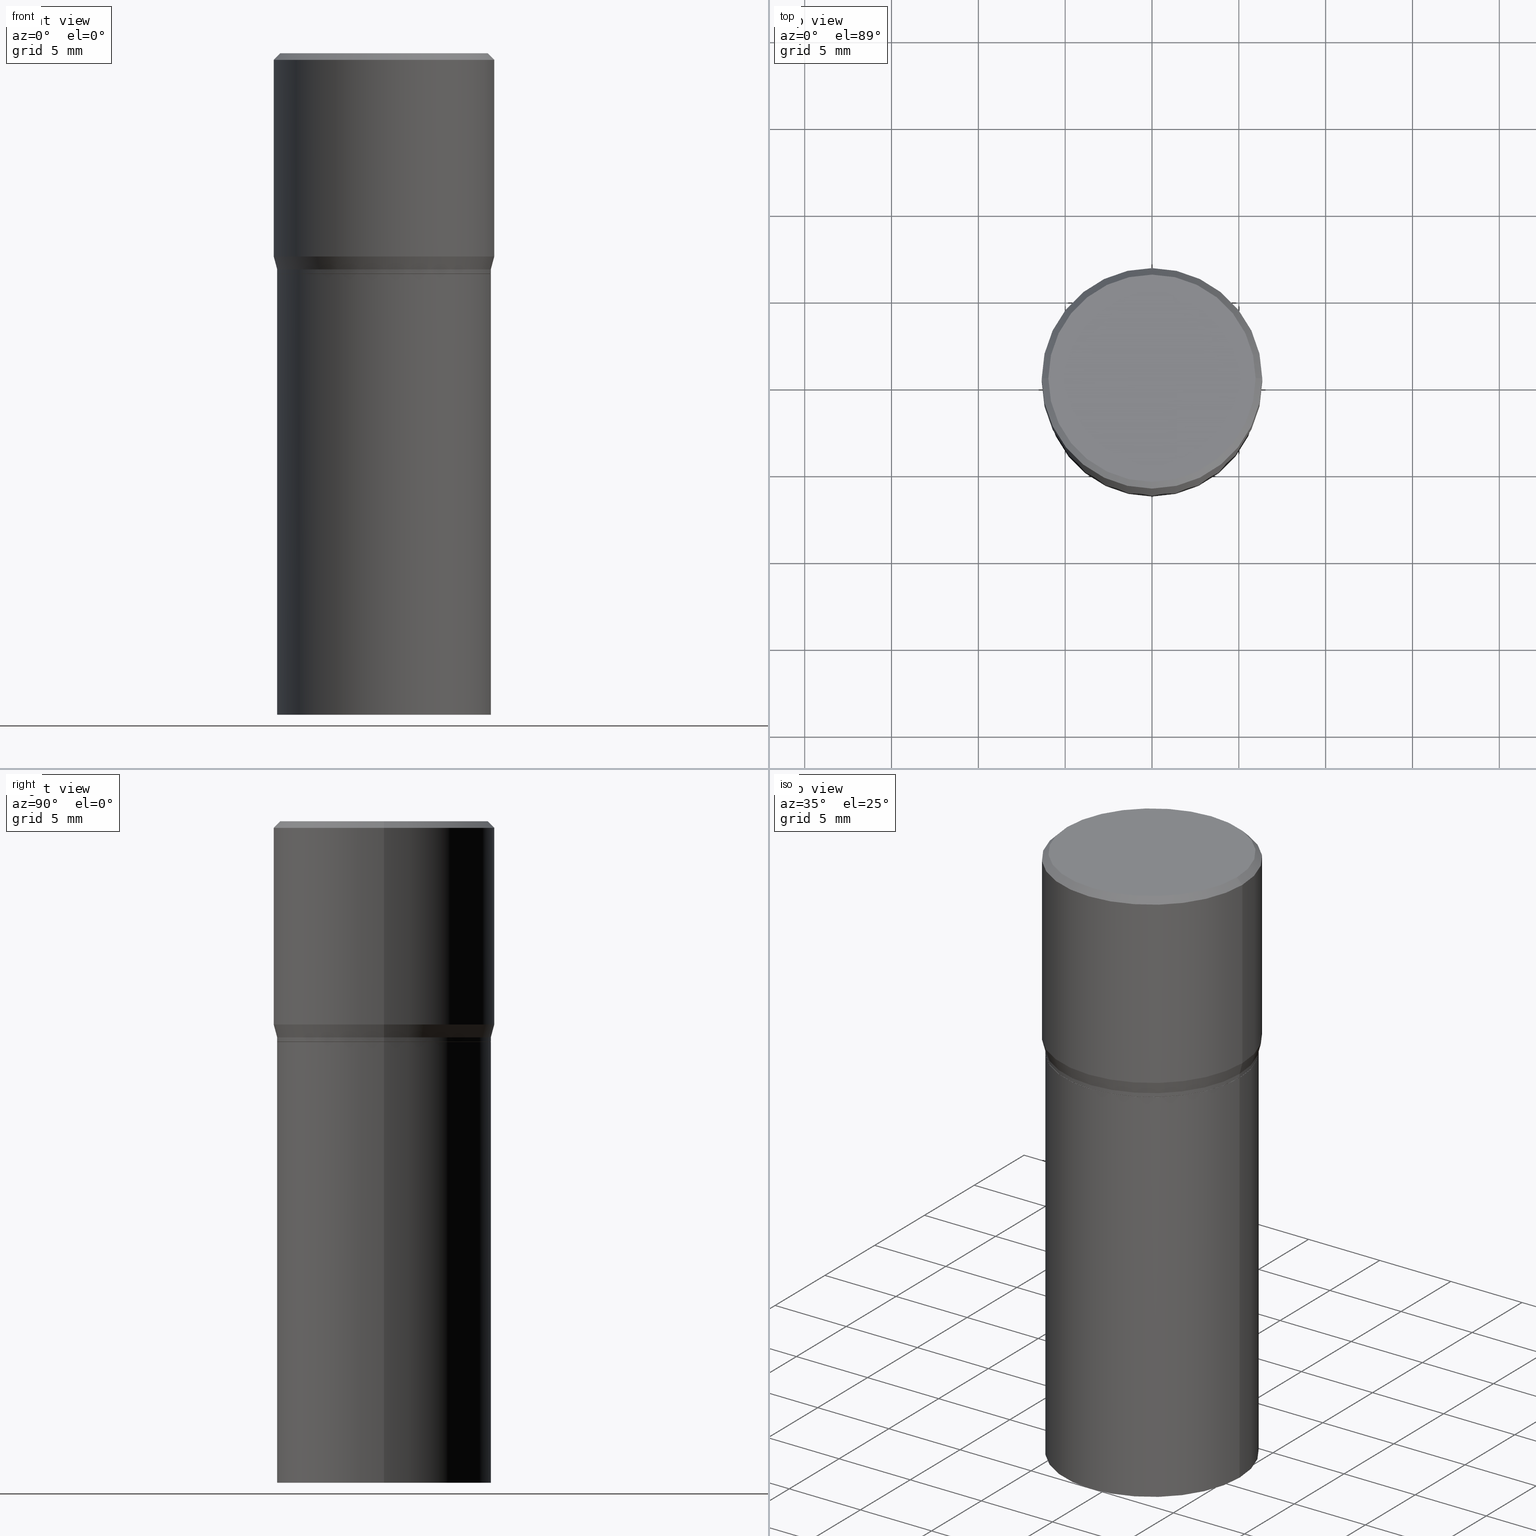
[diagram: canonical four-view strip — front | top / right | iso, engineering-drawing reading convention]
A machine part, canonical four-view strip (front | top / right | iso — engineering-drawing reading convention). The complete STEP part file that produces these views, byte-faithful:
ISO-10303-21;
HEADER;
FILE_DESCRIPTION (( 'STEP AP203' ),
    '1' );
FILE_NAME ('30801.STEP',
    '2024-03-13T16:21:37',
    ( '' ),
    ( '' ),
    'SwSTEP 2.0',
    'SolidWorks 2023',
    '' );
FILE_SCHEMA (( 'CONFIG_CONTROL_DESIGN' ));
ENDSEC;

DATA;
#1 = ADVANCED_FACE ( 'NONE', ( #291 ), #12, .T. ) ;
#2 = CARTESIAN_POINT ( 'NONE',  ( 0.2421999999999999431, -3.402099416568755134E-15, -0.4900000000000001021 ) ) ;
#3 = EDGE_CURVE ( 'NONE', #275, #40, #219, .T. ) ;
#4 = CARTESIAN_POINT ( 'NONE',  ( 0.2422000000000000264, -1.691273560535613991E-15, 1.181010015097775692E-29 ) ) ;
#5 = CARTESIAN_POINT ( 'NONE',  ( 0.2417000000000000259, -3.433522748618344170E-15, -0.5000000000000001110 ) ) ;
#6 = DIRECTION ( 'NONE',  ( -2.445468806185136597E-29, 3.491481338843145583E-15, 1.000000000000000000 ) ) ;
#7 = CONICAL_SURFACE ( 'NONE', #319, 0.2421999999999999431, 0.2617993877991494078 ) ;
#8 =( GEOMETRIC_REPRESENTATION_CONTEXT ( 3 ) GLOBAL_UNCERTAINTY_ASSIGNED_CONTEXT ( ( #13 ) ) GLOBAL_UNIT_ASSIGNED_CONTEXT ( ( #158, #337, #340 ) ) REPRESENTATION_CONTEXT ( 'NONE', 'WORKASPACE' ) );
#9 = DIRECTION ( 'NONE',  ( -2.445468806185136597E-29, 3.491481338843145583E-15, 1.000000000000000000 ) ) ;
#10 = DIRECTION ( 'NONE',  ( 2.438088387897960049E-29, -3.491481338843145188E-15, -1.000000000000000000 ) ) ;
#11 = CARTESIAN_POINT ( 'NONE',  ( 0.2500000000000000000, -1.745740669421566678E-15, 1.219044193948983948E-29 ) ) ;
#12 = CONICAL_SURFACE ( 'NONE', #450, 0.2417000000000000259, 0.7853981633974824739 ) ;
#13 = UNCERTAINTY_MEASURE_WITH_UNIT (LENGTH_MEASURE( 1.000000000000000082E-05 ), #158, 'distance_accuracy_value', 'NONE');
#14 = CARTESIAN_POINT ( 'NONE',  ( 0.2421999999999999431, -3.402099416568755134E-15, -0.4900000000000001021 ) ) ;
#15 = CARTESIAN_POINT ( 'NONE',  ( -0.2421999999999999709, 1.720934506010962443E-15, -1.191366078859738065E-29 ) ) ;
#16 = ORIENTED_EDGE ( 'NONE', *, *, #229, .T. ) ;
#17 = DIRECTION ( 'NONE',  ( -2.445468806185136597E-29, 3.491481338843145583E-15, 1.000000000000000000 ) ) ;
#18 = CIRCLE ( 'NONE', #161, 0.2422000000000000264 ) ;
#19 = DIRECTION ( 'NONE',  ( -2.445468806185136597E-29, 3.491481338843145583E-15, 1.000000000000000000 ) ) ;
#20 = EDGE_CURVE ( 'NONE', #275, #168, #465, .T. ) ;
#21 = APPROVAL_STATUS ( 'not_yet_approved' ) ;
#22 = ORIENTED_EDGE ( 'NONE', *, *, #330, .T. ) ;
#23 = APPROVAL ( #448, 'UNSPECIFIED' ) ;
#24 = CARTESIAN_POINT ( 'NONE',  ( 1.691273560535625824E-15, 0.2421999999999982778, -0.5000000000000009992 ) ) ;
#25 = VERTEX_POINT ( 'NONE', #221 ) ;
#26 = CARTESIAN_POINT ( 'NONE',  ( 0.2500000000000000000, -3.354929516602825687E-15, -0.4608900037009626693 ) ) ;
#27 = EDGE_CURVE ( 'NONE', #40, #307, #326, .T. ) ;
#28 = ORIENTED_EDGE ( 'NONE', *, *, #174, .T. ) ;
#29 = VECTOR ( 'NONE', #151, 39.37007874015748143 ) ;
#30 = DIRECTION ( 'NONE',  ( 1.000000000000000000, -6.982962677686266711E-15, 0.000000000000000000 ) ) ;
#31 = DIRECTION ( 'NONE',  ( -2.445468806185136597E-29, 3.491481338843145583E-15, 1.000000000000000000 ) ) ;
#32 = ORIENTED_EDGE ( 'NONE', *, *, #259, .T. ) ;
#33 = ADVANCED_FACE ( 'NONE', ( #260 ), #390, .T. ) ;
#34 = ORIENTED_EDGE ( 'NONE', *, *, #82, .T. ) ;
#35 = APPROVAL_PERSON_ORGANIZATION ( #38, #23, #126 ) ;
#36 = APPROVAL_DATE_TIME ( #261, #23 ) ;
#37 = EDGE_LOOP ( 'NONE', ( #22, #171 ) ) ;
#38 = PERSON_AND_ORGANIZATION ( #421, #222 ) ;
#39 = EDGE_CURVE ( 'NONE', #310, #407, #149, .T. ) ;
#40 = VERTEX_POINT ( 'NONE', #14 ) ;
#41 = AXIS2_PLACEMENT_3D ( 'NONE', #445, #268, #265 ) ;
#42 = DIRECTION ( 'NONE',  ( 1.000000000000000000, -6.982962677686267499E-15, 0.000000000000000000 ) ) ;
#43 = PLANE ( 'NONE',  #106 ) ;
#44 = DIRECTION ( 'NONE',  ( 1.000000000000000000, -6.982962677686267499E-15, 4.876176775795935793E-29 ) ) ;
#45 = DIRECTION ( 'NONE',  ( 2.445468806185136597E-29, -3.491481338843145583E-15, -1.000000000000000000 ) ) ;
#46 = CC_DESIGN_DATE_AND_TIME_ASSIGNMENT ( #69, #181, ( #364 ) ) ;
#47 = FACE_OUTER_BOUND ( 'NONE', #233, .T. ) ;
#48 = CIRCLE ( 'NONE', #170, 0.2422000000000000264 ) ;
#49 = EDGE_CURVE ( 'NONE', #145, #40, #372, .T. ) ;
#50 = LINE ( 'NONE', #15, #295 ) ;
#51 = CARTESIAN_POINT ( 'NONE',  ( 1.222734403092568719E-29, -1.745740669421573186E-15, -0.5000000000000001110 ) ) ;
#52 =( LENGTH_UNIT ( ) NAMED_UNIT ( * ) SI_UNIT ( $, .METRE. ) );
#53 = VECTOR ( 'NONE', #362, 39.37007874015748854 ) ;
#54 = EDGE_LOOP ( 'NONE', ( #321, #110, #464, #205 ) ) ;
#55 = LINE ( 'NONE', #396, #86 ) ;
#56 = DIRECTION ( 'NONE',  ( 0.7071067811865715536, -2.468850131082509496E-15, 0.7071067811865232589 ) ) ;
#57 = EDGE_LOOP ( 'NONE', ( #96, #446 ) ) ;
#58 = ADVANCED_FACE ( 'NONE', ( #186 ), #194, .T. ) ;
#59 = DIRECTION ( 'NONE',  ( 1.000000000000000000, -6.982962677686265922E-15, 4.876176775795935793E-29 ) ) ;
#60 = AXIS2_PLACEMENT_3D ( 'NONE', #328, #441, #232 ) ;
#61 = DIRECTION ( 'NONE',  ( 1.000000000000000000, -6.982962677686266711E-15, 0.000000000000000000 ) ) ;
#62 = CALENDAR_DATE ( 2024, 13, 3 ) ;
#63 = EDGE_LOOP ( 'NONE', ( #288, #377, #133, #217 ) ) ;
#64 = DIRECTION ( 'NONE',  ( -2.445468806185136597E-29, 3.491481338843145583E-15, 1.000000000000000000 ) ) ;
#65 = DATE_AND_TIME ( #62, #250 ) ;
#66 = APPLICATION_PROTOCOL_DEFINITION ( 'international standard', 'config_control_design', 1994, #148 ) ;
#67 = ORIENTED_EDGE ( 'NONE', *, *, #156, .T. ) ;
#68 = CYLINDRICAL_SURFACE ( 'NONE', #70, 0.2500000000000000000 ) ;
#69 = DATE_AND_TIME ( #412, #403 ) ;
#70 = AXIS2_PLACEMENT_3D ( 'NONE', #199, #19, #100 ) ;
#71 = APPLICATION_CONTEXT ( 'configuration controlled 3d designs of mechanical parts and assemblies' ) ;
#72 = COORDINATED_UNIVERSAL_TIME_OFFSET ( 5, 0, .BEHIND. ) ;
#73 = ORIENTED_EDGE ( 'NONE', *, *, #156, .F. ) ;
#74 = VECTOR ( 'NONE', #371, 39.37007874015748143 ) ;
#75 = EDGE_LOOP ( 'NONE', ( #352, #413, #242, #461 ) ) ;
#76 = EDGE_LOOP ( 'NONE', ( #184, #380, #401, #129 ) ) ;
#77 = EDGE_CURVE ( 'NONE', #168, #307, #256, .T. ) ;
#78 = ORIENTED_EDGE ( 'NONE', *, *, #323, .F. ) ;
#79 = CARTESIAN_POINT ( 'NONE',  ( 0.000000000000000000, 0.000000000000000000, 0.000000000000000000 ) ) ;
#80 = DIRECTION ( 'NONE',  ( 1.000000000000000000, -6.982962677686266711E-15, 0.000000000000000000 ) ) ;
#81 = CC_DESIGN_APPROVAL ( #23, ( #385 ) ) ;
#82 = EDGE_CURVE ( 'NONE', #310, #179, #395, .T. ) ;
#83 = CARTESIAN_POINT ( 'NONE',  ( -0.2422000000000000264, -2.306042274118916195E-17, -0.4995000000000001661 ) ) ;
#84 = MECHANICAL_CONTEXT ( 'NONE', #71, 'mechanical' ) ;
#85 = LINE ( 'NONE', #4, #29 ) ;
#86 = VECTOR ( 'NONE', #113, 39.37007874015748143 ) ;
#87 = CARTESIAN_POINT ( 'NONE',  ( 3.576687321579069994E-29, -5.368277968210015545E-15, -1.500000000000000222 ) ) ;
#88 = ORIENTED_EDGE ( 'NONE', *, *, #82, .F. ) ;
#89 = DIRECTION ( 'NONE',  ( 1.000000000000000000, -6.982962677686266711E-15, 0.000000000000000000 ) ) ;
#90 = VECTOR ( 'NONE', #112, 39.37007874015748854 ) ;
#91 = CC_DESIGN_SECURITY_CLASSIFICATION ( #405, ( #385 ) ) ;
#92 = DIRECTION ( 'NONE',  ( 1.000000000000000000, -6.982962677686267499E-15, 4.878549297894958458E-29 ) ) ;
#93 = ORIENTED_EDGE ( 'NONE', *, *, #454, .F. ) ;
#94 = FACE_OUTER_BOUND ( 'NONE', #207, .T. ) ;
#95 = CIRCLE ( 'NONE', #144, 0.2422000000000000264 ) ;
#96 = ORIENTED_EDGE ( 'NONE', *, *, #416, .F. ) ;
#97 = CARTESIAN_POINT ( 'NONE',  ( -0.2421999999999999431, 8.863832109840594652E-17, -0.4900000000000001021 ) ) ;
#98 = ADVANCED_FACE ( 'NONE', ( #47 ), #189, .T. ) ;
#99 = CLOSED_SHELL ( 'NONE', ( #305, #382, #392, #370 ) ) ;
#100 = DIRECTION ( 'NONE',  ( 1.000000000000000000, -6.982962677686266711E-15, 4.876176775795935793E-29 ) ) ;
#101 = DATE_AND_TIME ( #346, #332 ) ;
#102 = CARTESIAN_POINT ( 'NONE',  ( 1.222734403092568719E-29, -1.745740669421573186E-15, -0.5000000000000001110 ) ) ;
#103 = ADVANCED_FACE ( 'NONE', ( #231 ), #270, .F. ) ;
#104 = ORIENTED_EDGE ( 'NONE', *, *, #167, .T. ) ;
#105 = EDGE_LOOP ( 'NONE', ( #384, #16, #277, #93 ) ) ;
#106 = AXIS2_PLACEMENT_3D ( 'NONE', #87, #226, #197 ) ;
#107 = EDGE_LOOP ( 'NONE', ( #28, #34, #344, #142 ) ) ;
#108 = DATE_AND_TIME ( #353, #212 ) ;
#109 = PERSON_AND_ORGANIZATION ( #421, #222 ) ;
#110 = ORIENTED_EDGE ( 'NONE', *, *, #77, .T. ) ;
#111 = AXIS2_PLACEMENT_3D ( 'NONE', #363, #393, #89 ) ;
#112 = DIRECTION ( 'NONE',  ( 0.2588190451025206840, 1.565188264969626504E-15, 0.9659258262890682012 ) ) ;
#113 = DIRECTION ( 'NONE',  ( -2.445468806185136877E-29, 3.491481338843145188E-15, 1.000000000000000000 ) ) ;
#114 = CIRCLE ( 'NONE', #215, 0.2500000000000000000 ) ;
#115 = CARTESIAN_POINT ( 'NONE',  ( -0.2500000000000000000, 1.671679922189909619E-16, -0.4608900037009626693 ) ) ;
#116 = FACE_OUTER_BOUND ( 'NONE', #57, .T. ) ;
#117 = CARTESIAN_POINT ( 'NONE',  ( -0.2417000000000000259, -2.835887708941101245E-17, -0.5000000000000001110 ) ) ;
#118 = DIRECTION ( 'NONE',  ( -1.000000000000000000, 6.982962677686266711E-15, 0.000000000000000000 ) ) ;
#119 = CARTESIAN_POINT ( 'NONE',  ( 1.127092127133256402E-29, -1.609188847181259404E-15, -0.4608900037009626693 ) ) ;
#120 = CIRCLE ( 'NONE', #209, 0.2500000000000000000 ) ;
#121 = DIRECTION ( 'NONE',  ( 1.000000000000000000, -6.982962677686265922E-15, 0.000000000000000000 ) ) ;
#122 = ORIENTED_EDGE ( 'NONE', *, *, #218, .T. ) ;
#123 = PRODUCT_RELATED_PRODUCT_CATEGORY ( 'detail', '', ( #211 ) ) ;
#124 = DIRECTION ( 'NONE',  ( -2.445468806185136597E-29, 3.491481338843145583E-15, 1.000000000000000000 ) ) ;
#125 = APPROVAL_ROLE ( '' ) ;
#126 = APPROVAL_ROLE ( '' ) ;
#127 = EDGE_LOOP ( 'NONE', ( #318, #67, #355, #358 ) ) ;
#128 = CARTESIAN_POINT ( 'NONE',  ( -0.2422000000000000264, -1.770546832832183337E-15, -0.5000000000000001110 ) ) ;
#129 = ORIENTED_EDGE ( 'NONE', *, *, #77, .F. ) ;
#130 = CARTESIAN_POINT ( 'NONE',  ( -0.2500000000000000000, 1.693368449338919401E-15, -0.01499999999999999944 ) ) ;
#131 = AXIS2_PLACEMENT_3D ( 'NONE', #237, #45, #118 ) ;
#132 = PERSON_AND_ORGANIZATION ( #421, #222 ) ;
#133 = ORIENTED_EDGE ( 'NONE', *, *, #252, .F. ) ;
#134 = CARTESIAN_POINT ( 'NONE',  ( -0.2349999999999999867, 1.667182339297596256E-15, 1.568636843340762393E-16 ) ) ;
#135 = PERSON_AND_ORGANIZATION_ROLE ( 'creator' ) ;
#136 = ORIENTED_EDGE ( 'NONE', *, *, #330, .F. ) ;
#137 = AXIS2_PLACEMENT_3D ( 'NONE', #439, #10, #329 ) ;
#138 = CARTESIAN_POINT ( 'NONE',  ( -0.2500000000000000000, 9.455763057682970257E-16, -0.01499999999999999944 ) ) ;
#139 = VECTOR ( 'NONE', #56, 39.37007874015748854 ) ;
#140 = EDGE_LOOP ( 'NONE', ( #159, #198 ) ) ;
#141 = ORIENTED_EDGE ( 'NONE', *, *, #252, .T. ) ;
#142 = ORIENTED_EDGE ( 'NONE', *, *, #431, .F. ) ;
#143 = EDGE_CURVE ( 'NONE', #145, #179, #230, .T. ) ;
#144 = AXIS2_PLACEMENT_3D ( 'NONE', #447, #154, #42 ) ;
#145 = VERTEX_POINT ( 'NONE', #234 ) ;
#146 = DATE_TIME_ROLE ( 'classification_date' ) ;
#147 = PERSON_AND_ORGANIZATION ( #421, #222 ) ;
#148 = APPLICATION_CONTEXT ( 'configuration controlled 3d designs of mechanical parts and assemblies' ) ;
#149 = CIRCLE ( 'NONE', #111, 0.2417000000000000259 ) ;
#150 = ORIENTED_EDGE ( 'NONE', *, *, #386, .T. ) ;
#151 = DIRECTION ( 'NONE',  ( -2.445468806185136877E-29, 3.491481338843145188E-15, 1.000000000000000000 ) ) ;
#152 = CARTESIAN_POINT ( 'NONE',  ( 0.2421999999999999709, -1.691273560535613794E-15, 1.181010015097775552E-29 ) ) ;
#153 = CARTESIAN_POINT ( 'NONE',  ( 0.000000000000000000, 0.000000000000000000, 0.000000000000000000 ) ) ;
#154 = DIRECTION ( 'NONE',  ( -2.445468806185136597E-29, 3.491481338843145583E-15, 1.000000000000000000 ) ) ;
#155 = LINE ( 'NONE', #11, #74 ) ;
#156 = EDGE_CURVE ( 'NONE', #165, #322, #55, .T. ) ;
#157 = DIRECTION ( 'NONE',  ( -2.445468806185136597E-29, 3.491481338843145583E-15, 1.000000000000000000 ) ) ;
#158 =( CONVERSION_BASED_UNIT ( 'INCH', #294 ) LENGTH_UNIT ( ) NAMED_UNIT ( #290 ) );
#159 = ORIENTED_EDGE ( 'NONE', *, *, #174, .F. ) ;
#160 = DIRECTION ( 'NONE',  ( 1.000000000000000000, -6.982962677686267499E-15, 0.000000000000000000 ) ) ;
#161 = AXIS2_PLACEMENT_3D ( 'NONE', #406, #224, #453 ) ;
#162 = CARTESIAN_POINT ( 'NONE',  ( 3.668203209277705088E-31, -5.237222008264718399E-17, -0.01499999999999999944 ) ) ;
#163 = DIRECTION ( 'NONE',  ( 1.000000000000000000, -6.982962677686266711E-15, 0.000000000000000000 ) ) ;
#164 = CC_DESIGN_APPROVAL ( #394, ( #405 ) ) ;
#165 = VERTEX_POINT ( 'NONE', #266 ) ;
#166 = DIRECTION ( 'NONE',  ( -1.000000000000000000, 6.982962677686265922E-15, -4.876176775795935793E-29 ) ) ;
#167 = EDGE_CURVE ( 'NONE', #179, #145, #95, .T. ) ;
#168 = VERTEX_POINT ( 'NONE', #115 ) ;
#169 = DIRECTION ( 'NONE',  ( -2.445468806185136877E-29, 3.491481338843145188E-15, 1.000000000000000000 ) ) ;
#170 = AXIS2_PLACEMENT_3D ( 'NONE', #191, #188, #121 ) ;
#171 = ORIENTED_EDGE ( 'NONE', *, *, #297, .T. ) ;
#172 = FACE_OUTER_BOUND ( 'NONE', #374, .T. ) ;
#173 = AXIS2_PLACEMENT_3D ( 'NONE', #79, #31, #44 ) ;
#174 = EDGE_CURVE ( 'NONE', #407, #310, #262, .T. ) ;
#175 = PERSON_AND_ORGANIZATION ( #421, #222 ) ;
#176 = DIRECTION ( 'NONE',  ( 1.000000000000000000, -6.982962677686266711E-15, 0.000000000000000000 ) ) ;
#177 = CALENDAR_DATE ( 2024, 13, 3 ) ;
#178 = AXIS2_PLACEMENT_3D ( 'NONE', #404, #9, #400 ) ;
#179 = VERTEX_POINT ( 'NONE', #83 ) ;
#180 = VERTEX_POINT ( 'NONE', #435 ) ;
#181 = DATE_TIME_ROLE ( 'creation_date' ) ;
#182 = ORIENTED_EDGE ( 'NONE', *, *, #3, .F. ) ;
#183 = AXIS2_PLACEMENT_3D ( 'NONE', #308, #276, #411 ) ;
#184 = ORIENTED_EDGE ( 'NONE', *, *, #20, .F. ) ;
#185 = EDGE_CURVE ( 'NONE', #25, #409, #85, .T. ) ;
#186 = FACE_OUTER_BOUND ( 'NONE', #107, .T. ) ;
#187 = EDGE_CURVE ( 'NONE', #307, #168, #418, .T. ) ;
#188 = DIRECTION ( 'NONE',  ( -2.445468806185136597E-29, 3.491481338843145583E-15, 1.000000000000000000 ) ) ;
#189 = CYLINDRICAL_SURFACE ( 'NONE', #466, 0.2421999999999999709 ) ;
#190 = DIRECTION ( 'NONE',  ( -2.445468806185136877E-29, 3.491481338843145188E-15, 1.000000000000000000 ) ) ;
#191 = CARTESIAN_POINT ( 'NONE',  ( 3.668203209277704895E-29, -5.237222008264718177E-15, -1.500000000000000222 ) ) ;
#192 = FACE_OUTER_BOUND ( 'NONE', #54, .T. ) ;
#193 = CC_DESIGN_PERSON_AND_ORGANIZATION_ASSIGNMENT ( #359, #289, ( #405 ) ) ;
#194 = CONICAL_SURFACE ( 'NONE', #388, 0.2417000000000000259, 0.7853981633974824739 ) ;
#195 = ORIENTED_EDGE ( 'NONE', *, *, #49, .T. ) ;
#196 = DIRECTION ( 'NONE',  ( 1.000000000000000000, -6.982962677686266711E-15, 0.000000000000000000 ) ) ;
#197 = DIRECTION ( 'NONE',  ( 1.000000000000000000, -6.982962677686265922E-15, 4.876176775795935793E-29 ) ) ;
#198 = ORIENTED_EDGE ( 'NONE', *, *, #39, .F. ) ;
#199 = CARTESIAN_POINT ( 'NONE',  ( 0.000000000000000000, 0.000000000000000000, 0.000000000000000000 ) ) ;
#200 = COORDINATED_UNIVERSAL_TIME_OFFSET ( 5, 0, .BEHIND. ) ;
#201 = VECTOR ( 'NONE', #169, 39.37007874015748143 ) ;
#202 = ORIENTED_EDGE ( 'NONE', *, *, #39, .T. ) ;
#203 = CARTESIAN_POINT ( 'NONE',  ( 1.198279715030717173E-29, -1.710825856033141537E-15, -0.4900000000000001021 ) ) ;
#204 = EDGE_CURVE ( 'NONE', #165, #25, #424, .T. ) ;
#205 = ORIENTED_EDGE ( 'NONE', *, *, #442, .F. ) ;
#206 = DIRECTION ( 'NONE',  ( -2.445468806185136597E-29, 3.491481338843145583E-15, 1.000000000000000000 ) ) ;
#207 = EDGE_LOOP ( 'NONE', ( #141, #349, #463, #429 ) ) ;
#208 = DIRECTION ( 'NONE',  ( 0.7071067811865441310, -7.319954787623245001E-15, -0.7071067811865509034 ) ) ;
#209 = AXIS2_PLACEMENT_3D ( 'NONE', #293, #443, #301 ) ;
#210 = ADVANCED_FACE ( 'NONE', ( #192 ), #227, .T. ) ;
#211 = PRODUCT ( '30801', '30801', '', ( #84 ) ) ;
#212 = LOCAL_TIME ( 12, 21, 37.00000000000000000, #72 ) ;
#213 = EDGE_CURVE ( 'NONE', #253, #302, #120, .T. ) ;
#214 = ORIENTED_EDGE ( 'NONE', *, *, #431, .T. ) ;
#215 = AXIS2_PLACEMENT_3D ( 'NONE', #162, #306, #449 ) ;
#216 = CC_DESIGN_PERSON_AND_ORGANIZATION_ASSIGNMENT ( #132, #135, ( #364 ) ) ;
#217 = ORIENTED_EDGE ( 'NONE', *, *, #49, .F. ) ;
#218 = EDGE_CURVE ( 'NONE', #322, #409, #18, .T. ) ;
#219 = CIRCLE ( 'NONE', #427, 0.2421999999999999431 ) ;
#220 = SECURITY_CLASSIFICATION_LEVEL ( 'unclassified' ) ;
#221 = CARTESIAN_POINT ( 'NONE',  ( 0.2422000000000000264, -6.928495568800332365E-15, -1.500000000000000222 ) ) ;
#222 = ORGANIZATION ( 'UNSPECIFIED', 'UNSPECIFIED', '' ) ;
#223 = AXIS2_PLACEMENT_3D ( 'NONE', #304, #6, #160 ) ;
#224 = DIRECTION ( 'NONE',  ( -2.445468806185136597E-29, 3.491481338843145583E-15, 1.000000000000000000 ) ) ;
#225 = DIRECTION ( 'NONE',  ( 1.000000000000000000, -6.982962677686267499E-15, 4.876176775795935793E-29 ) ) ;
#226 = DIRECTION ( 'NONE',  ( -2.438088387897960049E-29, 3.491481338843145188E-15, 1.000000000000000000 ) ) ;
#227 = CYLINDRICAL_SURFACE ( 'NONE', #399, 0.2500000000000000000 ) ;
#228 = DIRECTION ( 'NONE',  ( -2.445468806185136877E-29, 3.491481338843145188E-15, 1.000000000000000000 ) ) ;
#229 = EDGE_CURVE ( 'NONE', #168, #302, #343, .T. ) ;
#230 = CIRCLE ( 'NONE', #223, 0.2422000000000000264 ) ;
#231 = FACE_OUTER_BOUND ( 'NONE', #37, .T. ) ;
#232 = DIRECTION ( 'NONE',  ( -1.000000000000000000, 6.982962677686266711E-15, 0.000000000000000000 ) ) ;
#233 = EDGE_LOOP ( 'NONE', ( #383, #104, #195, #182 ) ) ;
#234 = CARTESIAN_POINT ( 'NONE',  ( 0.2422000000000000264, -3.435268489287765674E-15, -0.4995000000000001661 ) ) ;
#235 = APPROVAL_DATE_TIME ( #65, #394 ) ;
#236 = VECTOR ( 'NONE', #389, 39.37007874015748854 ) ;
#237 = CARTESIAN_POINT ( 'NONE',  ( 3.668203209277705088E-31, -5.237222008264718399E-17, -0.01499999999999999944 ) ) ;
#238 = DIRECTION ( 'NONE',  ( -2.445468806185136597E-29, 3.491481338843145583E-15, 1.000000000000000000 ) ) ;
#239 = FACE_OUTER_BOUND ( 'NONE', #341, .T. ) ;
#240 = LINE ( 'NONE', #311, #444 ) ;
#241 = CC_DESIGN_DATE_AND_TIME_ASSIGNMENT ( #108, #146, ( #405 ) ) ;
#242 = ORIENTED_EDGE ( 'NONE', *, *, #213, .T. ) ;
#243 = CARTESIAN_POINT ( 'NONE',  ( 1.198279715030717173E-29, -1.710825856033141537E-15, -0.4900000000000001021 ) ) ;
#244 = ORIENTED_EDGE ( 'NONE', *, *, #218, .F. ) ;
#245 = LINE ( 'NONE', #130, #356 ) ;
#246 = ADVANCED_FACE ( 'NONE', ( #458 ), #68, .T. ) ;
#247 = ADVANCED_FACE ( 'NONE', ( #378 ), #7, .T. ) ;
#248 = DIRECTION ( 'NONE',  ( -2.438088387897960049E-29, 3.491481338843145188E-15, 1.000000000000000000 ) ) ;
#249 = AXIS2_PLACEMENT_3D ( 'NONE', #102, #248, #59 ) ;
#250 = LOCAL_TIME ( 12, 21, 37.00000000000000000, #267 ) ;
#251 = ORIENTED_EDGE ( 'NONE', *, *, #204, .T. ) ;
#252 = EDGE_CURVE ( 'NONE', #40, #275, #391, .T. ) ;
#253 = VERTEX_POINT ( 'NONE', #278 ) ;
#254 = CIRCLE ( 'NONE', #183, 0.2349999999999999867 ) ;
#255 = PERSON_AND_ORGANIZATION_ROLE ( 'design_supplier' ) ;
#256 = CIRCLE ( 'NONE', #335, 0.2500000000000000000 ) ;
#257 = DIRECTION ( 'NONE',  ( -2.445468806185136597E-29, 3.491481338843145583E-15, 1.000000000000000000 ) ) ;
#258 = APPROVAL_STATUS ( 'not_yet_approved' ) ;
#259 = EDGE_CURVE ( 'NONE', #360, #302, #245, .T. ) ;
#260 = FACE_OUTER_BOUND ( 'NONE', #63, .T. ) ;
#261 = DATE_AND_TIME ( #177, #273 ) ;
#262 = CIRCLE ( 'NONE', #286, 0.2417000000000000259 ) ;
#263 = CARTESIAN_POINT ( 'NONE',  ( 1.222734403092568719E-29, -1.745740669421573186E-15, -0.5000000000000001110 ) ) ;
#264 = CARTESIAN_POINT ( 'NONE',  ( 3.668203209277704895E-29, -5.237222008264718177E-15, -1.500000000000000222 ) ) ;
#265 = DIRECTION ( 'NONE',  ( 1.000000000000000000, -6.982962677686266711E-15, 0.000000000000000000 ) ) ;
#266 = CARTESIAN_POINT ( 'NONE',  ( -0.2422000000000000264, -1.770546832832183337E-15, -1.500000000000000222 ) ) ;
#267 = COORDINATED_UNIVERSAL_TIME_OFFSET ( 5, 0, .BEHIND. ) ;
#268 = DIRECTION ( 'NONE',  ( -2.445468806185136597E-29, 3.491481338843145583E-15, 1.000000000000000000 ) ) ;
#269 = AXIS2_PLACEMENT_3D ( 'NONE', #203, #282, #163 ) ;
#270 = PLANE ( 'NONE',  #137 ) ;
#271 = FACE_OUTER_BOUND ( 'NONE', #281, .T. ) ;
#272 = DIRECTION ( 'NONE',  ( 1.000000000000000000, -6.982962677686265922E-15, 0.000000000000000000 ) ) ;
#273 = LOCAL_TIME ( 12, 21, 37.00000000000000000, #200 ) ;
#274 = APPLICATION_PROTOCOL_DEFINITION ( 'international standard', 'config_control_design', 1994, #71 ) ;
#275 = VERTEX_POINT ( 'NONE', #97 ) ;
#276 = DIRECTION ( 'NONE',  ( -2.445468806185136597E-29, 3.491481338843145583E-15, 1.000000000000000000 ) ) ;
#277 = ORIENTED_EDGE ( 'NONE', *, *, #213, .F. ) ;
#278 = CARTESIAN_POINT ( 'NONE',  ( 0.2500000000000000000, -1.798112889504214151E-15, -0.01499999999999999944 ) ) ;
#279 = AXIS2_PLACEMENT_3D ( 'NONE', #309, #408, #30 ) ;
#280 = MANIFOLD_SOLID_BREP ( 'Body-Move/Copy2[1]', #99 ) ;
#281 = EDGE_LOOP ( 'NONE', ( #78, #136, #32, #452 ) ) ;
#282 = DIRECTION ( 'NONE',  ( -2.445468806185136597E-29, 3.491481338843145583E-15, 1.000000000000000000 ) ) ;
#283 = FACE_OUTER_BOUND ( 'NONE', #140, .T. ) ;
#284 = EDGE_LOOP ( 'NONE', ( #88, #202, #214, #347 ) ) ;
#285 = CARTESIAN_POINT ( 'NONE',  ( 1.198279715030717173E-29, -1.710825856033141537E-15, -0.4900000000000001021 ) ) ;
#286 = AXIS2_PLACEMENT_3D ( 'NONE', #51, #296, #196 ) ;
#287 = ADVANCED_FACE ( 'NONE', ( #94 ), #325, .T. ) ;
#288 = ORIENTED_EDGE ( 'NONE', *, *, #143, .T. ) ;
#289 = PERSON_AND_ORGANIZATION_ROLE ( 'classification_officer' ) ;
#290 = DIMENSIONAL_EXPONENTS ( 1.000000000000000000, 0.000000000000000000, 0.000000000000000000, 0.000000000000000000, 0.000000000000000000, 0.000000000000000000, 0.000000000000000000 ) ;
#291 = FACE_OUTER_BOUND ( 'NONE', #284, .T. ) ;
#292 = PERSON_AND_ORGANIZATION_ROLE ( 'creator' ) ;
#293 = CARTESIAN_POINT ( 'NONE',  ( 3.668203209277705088E-31, -5.237222008264718399E-17, -0.01499999999999999944 ) ) ;
#294 = LENGTH_MEASURE_WITH_UNIT ( LENGTH_MEASURE( 0.02539999999999999897 ), #52 );
#295 = VECTOR ( 'NONE', #228, 39.37007874015748143 ) ;
#296 = DIRECTION ( 'NONE',  ( -2.445468806185136597E-29, 3.491481338843145583E-15, 1.000000000000000000 ) ) ;
#297 = EDGE_CURVE ( 'NONE', #180, #360, #254, .T. ) ;
#298 = DIRECTION ( 'NONE',  ( 0.000000000000000000, 0.000000000000000000, 1.000000000000000000 ) ) ;
#299 = DIRECTION ( 'NONE',  ( -2.445468806185136597E-29, 3.491481338843145583E-15, 1.000000000000000000 ) ) ;
#300 = CARTESIAN_POINT ( 'NONE',  ( 0.2422000000000000264, -3.437014229957187177E-15, -0.5000000000000001110 ) ) ;
#301 = DIRECTION ( 'NONE',  ( 1.000000000000000000, -6.982962677686266711E-15, 0.000000000000000000 ) ) ;
#302 = VERTEX_POINT ( 'NONE', #138 ) ;
#303 = AXIS2_PLACEMENT_3D ( 'NONE', #264, #124, #272 ) ;
#304 = CARTESIAN_POINT ( 'NONE',  ( 1.221511668689476057E-29, -1.743994928752151682E-15, -0.4995000000000001661 ) ) ;
#305 = ADVANCED_FACE ( 'NONE', ( #451 ), #345, .T. ) ;
#306 = DIRECTION ( 'NONE',  ( -2.445468806185136597E-29, 3.491481338843145583E-15, 1.000000000000000000 ) ) ;
#307 = VERTEX_POINT ( 'NONE', #26 ) ;
#308 = CARTESIAN_POINT ( 'NONE',  ( -3.836052468622837406E-45, 5.476866265946494270E-31, 1.568636843340877764E-16 ) ) ;
#309 = CARTESIAN_POINT ( 'NONE',  ( 1.198279715030717173E-29, -1.710825856033141537E-15, -0.4900000000000001021 ) ) ;
#310 = VERTEX_POINT ( 'NONE', #350 ) ;
#311 = CARTESIAN_POINT ( 'NONE',  ( 0.2500000000000000000, -1.767496719525530167E-15, -0.01499999999999999944 ) ) ;
#312 = AXIS2_PLACEMENT_3D ( 'NONE', #153, #298, #437 ) ;
#313 = ADVANCED_BREP_SHAPE_REPRESENTATION ( '30801', ( #280, #436, #312 ), #8 ) ;
#314 = APPROVAL_ROLE ( '' ) ;
#315 = DIRECTION ( 'NONE',  ( -0.7071067811865441310, 2.468850131082221167E-15, -0.7071067811865509034 ) ) ;
#316 = PERSON_AND_ORGANIZATION_ROLE ( 'design_owner' ) ;
#317 = COORDINATED_UNIVERSAL_TIME_OFFSET ( 5, 0, .BEHIND. ) ;
#318 = ORIENTED_EDGE ( 'NONE', *, *, #416, .T. ) ;
#319 = AXIS2_PLACEMENT_3D ( 'NONE', #243, #64, #61 ) ;
#320 = CC_DESIGN_PERSON_AND_ORGANIZATION_ASSIGNMENT ( #175, #316, ( #211 ) ) ;
#321 = ORIENTED_EDGE ( 'NONE', *, *, #229, .F. ) ;
#322 = VERTEX_POINT ( 'NONE', #128 ) ;
#323 = EDGE_CURVE ( 'NONE', #180, #253, #240, .T. ) ;
#324 = DIRECTION ( 'NONE',  ( -2.445468806185136597E-29, 3.491481338843145583E-15, 1.000000000000000000 ) ) ;
#325 = CONICAL_SURFACE ( 'NONE', #279, 0.2421999999999999431, 0.2617993877991494078 ) ;
#326 = LINE ( 'NONE', #2, #90 ) ;
#327 = CARTESIAN_POINT ( 'NONE',  ( 0.000000000000000000, 0.000000000000000000, 0.000000000000000000 ) ) ;
#328 = CARTESIAN_POINT ( 'NONE',  ( 3.668203209277705088E-31, -5.237222008264718399E-17, -0.01499999999999999944 ) ) ;
#329 = DIRECTION ( 'NONE',  ( -1.000000000000000000, 6.982962677686265922E-15, -4.876176775795935793E-29 ) ) ;
#330 = EDGE_CURVE ( 'NONE', #360, #180, #410, .T. ) ;
#331 = CONICAL_SURFACE ( 'NONE', #131, 0.2500000000000000000, 0.7853981633974435050 ) ;
#332 = LOCAL_TIME ( 12, 21, 37.00000000000000000, #419 ) ;
#333 = DIRECTION ( 'NONE',  ( 1.000000000000000000, -6.982962677686266711E-15, 0.000000000000000000 ) ) ;
#334 = FACE_OUTER_BOUND ( 'NONE', #75, .T. ) ;
#335 = AXIS2_PLACEMENT_3D ( 'NONE', #119, #299, #333 ) ;
#336 = CARTESIAN_POINT ( 'NONE',  ( 0.000000000000000000, 0.000000000000000000, 0.000000000000000000 ) ) ;
#337 =( NAMED_UNIT ( * ) PLANE_ANGLE_UNIT ( ) SI_UNIT ( $, .RADIAN. ) );
#338 = DESIGN_CONTEXT ( 'detailed design', #148, 'design' ) ;
#339 = CARTESIAN_POINT ( 'NONE',  ( 1.127092127133256402E-29, -1.609188847181259404E-15, -0.4608900037009626693 ) ) ;
#340 =( NAMED_UNIT ( * ) SI_UNIT ( $, .STERADIAN. ) SOLID_ANGLE_UNIT ( ) );
#341 = EDGE_LOOP ( 'NONE', ( #73, #251, #420, #244 ) ) ;
#342 = CONICAL_SURFACE ( 'NONE', #60, 0.2500000000000000000, 0.7853981633974435050 ) ;
#343 = LINE ( 'NONE', #376, #201 ) ;
#344 = ORIENTED_EDGE ( 'NONE', *, *, #143, .F. ) ;
#345 = CYLINDRICAL_SURFACE ( 'NONE', #460, 0.2422000000000000264 ) ;
#346 = CALENDAR_DATE ( 2024, 13, 3 ) ;
#347 = ORIENTED_EDGE ( 'NONE', *, *, #167, .F. ) ;
#348 = DIRECTION ( 'NONE',  ( 1.000000000000000000, -6.982962677686266711E-15, 4.876176775795935232E-29 ) ) ;
#349 = ORIENTED_EDGE ( 'NONE', *, *, #20, .T. ) ;
#350 = CARTESIAN_POINT ( 'NONE',  ( -0.2417000000000000259, -2.570964991530020892E-17, -0.5000000000000001110 ) ) ;
#351 = AXIS2_PLACEMENT_3D ( 'NONE', #339, #432, #369 ) ;
#352 = ORIENTED_EDGE ( 'NONE', *, *, #297, .F. ) ;
#353 = CALENDAR_DATE ( 2024, 13, 3 ) ;
#354 = CC_DESIGN_PERSON_AND_ORGANIZATION_ASSIGNMENT ( #147, #292, ( #385 ) ) ;
#355 = ORIENTED_EDGE ( 'NONE', *, *, #386, .F. ) ;
#356 = VECTOR ( 'NONE', #315, 39.37007874015748143 ) ;
#357 = CARTESIAN_POINT ( 'NONE',  ( 1.222734403092568719E-29, -1.745740669421573186E-15, -0.5000000000000001110 ) ) ;
#358 = ORIENTED_EDGE ( 'NONE', *, *, #185, .F. ) ;
#359 = PERSON_AND_ORGANIZATION ( #421, #222 ) ;
#360 = VERTEX_POINT ( 'NONE', #134 ) ;
#361 = AXIS2_PLACEMENT_3D ( 'NONE', #456, #238, #92 ) ;
#362 = DIRECTION ( 'NONE',  ( -0.7071067811865715536, 7.493145998870439357E-15, 0.7071067811865232589 ) ) ;
#363 = CARTESIAN_POINT ( 'NONE',  ( 1.222734403092568719E-29, -1.745740669421573186E-15, -0.5000000000000001110 ) ) ;
#364 = PRODUCT_DEFINITION ( 'UNKNOWN', '', #385, #338 ) ;
#365 = LINE ( 'NONE', #434, #139 ) ;
#366 = DIRECTION ( 'NONE',  ( 1.000000000000000000, -6.982962677686266711E-15, 4.876176775795935793E-29 ) ) ;
#367 = CIRCLE ( 'NONE', #41, 0.2422000000000000264 ) ;
#368 = CYLINDRICAL_SURFACE ( 'NONE', #178, 0.2422000000000000264 ) ;
#369 = DIRECTION ( 'NONE',  ( 1.000000000000000000, -6.982962677686266711E-15, 0.000000000000000000 ) ) ;
#370 = ADVANCED_FACE ( 'NONE', ( #172 ), #414, .F. ) ;
#371 = DIRECTION ( 'NONE',  ( -2.445468806185136877E-29, 3.491481338843145188E-15, 1.000000000000000000 ) ) ;
#372 = LINE ( 'NONE', #152, #459 ) ;
#373 = APPROVAL ( #21, 'UNSPECIFIED' ) ;
#374 = EDGE_LOOP ( 'NONE', ( #150, #122 ) ) ;
#375 = CARTESIAN_POINT ( 'NONE',  ( 0.000000000000000000, 0.000000000000000000, 0.000000000000000000 ) ) ;
#376 = CARTESIAN_POINT ( 'NONE',  ( -0.2500000000000000000, 1.776356839400250465E-15, -1.229733772563726445E-29 ) ) ;
#377 = ORIENTED_EDGE ( 'NONE', *, *, #398, .T. ) ;
#378 = FACE_OUTER_BOUND ( 'NONE', #76, .T. ) ;
#379 = ADVANCED_FACE ( 'NONE', ( #283 ), #415, .F. ) ;
#380 = ORIENTED_EDGE ( 'NONE', *, *, #3, .T. ) ;
#381 = DIRECTION ( 'NONE',  ( 2.438088387897960049E-29, -3.491481338843145188E-15, -1.000000000000000000 ) ) ;
#382 = ADVANCED_FACE ( 'NONE', ( #116 ), #43, .F. ) ;
#383 = ORIENTED_EDGE ( 'NONE', *, *, #398, .F. ) ;
#384 = ORIENTED_EDGE ( 'NONE', *, *, #187, .T. ) ;
#385 = PRODUCT_DEFINITION_FORMATION_WITH_SPECIFIED_SOURCE ( 'ANY', '', #211, .NOT_KNOWN. ) ;
#386 = EDGE_CURVE ( 'NONE', #409, #322, #367, .T. ) ;
#387 = PRODUCT_DEFINITION_SHAPE ( 'NONE', 'NONE',  #364 ) ;
#388 = AXIS2_PLACEMENT_3D ( 'NONE', #263, #17, #80 ) ;
#389 = DIRECTION ( 'NONE',  ( -0.2588190451025206840, 5.211531920934545520E-15, 0.9659258262890682012 ) ) ;
#390 = CYLINDRICAL_SURFACE ( 'NONE', #173, 0.2421999999999999709 ) ;
#391 = CIRCLE ( 'NONE', #269, 0.2421999999999999431 ) ;
#392 = ADVANCED_FACE ( 'NONE', ( #239 ), #368, .T. ) ;
#393 = DIRECTION ( 'NONE',  ( -2.445468806185136597E-29, 3.491481338843145583E-15, 1.000000000000000000 ) ) ;
#394 = APPROVAL ( #258, 'UNSPECIFIED' ) ;
#395 = LINE ( 'NONE', #117, #53 ) ;
#396 = CARTESIAN_POINT ( 'NONE',  ( -0.2422000000000000264, 1.720934506010962838E-15, -1.191366078859738205E-29 ) ) ;
#397 = SHAPE_DEFINITION_REPRESENTATION ( #387, #313 ) ;
#398 = EDGE_CURVE ( 'NONE', #179, #275, #50, .T. ) ;
#399 = AXIS2_PLACEMENT_3D ( 'NONE', #336, #157, #366 ) ;
#400 = DIRECTION ( 'NONE',  ( 1.000000000000000000, -6.982962677686266711E-15, 4.876176775795935232E-29 ) ) ;
#401 = ORIENTED_EDGE ( 'NONE', *, *, #27, .T. ) ;
#402 = DIRECTION ( 'NONE',  ( -2.445468806185136597E-29, 3.491481338843145583E-15, 1.000000000000000000 ) ) ;
#403 = LOCAL_TIME ( 12, 21, 37.00000000000000000, #317 ) ;
#404 = CARTESIAN_POINT ( 'NONE',  ( 0.000000000000000000, 0.000000000000000000, 0.000000000000000000 ) ) ;
#405 = SECURITY_CLASSIFICATION ( '', '', #220 ) ;
#406 = CARTESIAN_POINT ( 'NONE',  ( 1.222734403092568719E-29, -1.745740669421573186E-15, -0.5000000000000001110 ) ) ;
#407 = VERTEX_POINT ( 'NONE', #5 ) ;
#408 = DIRECTION ( 'NONE',  ( -2.445468806185136597E-29, 3.491481338843145583E-15, 1.000000000000000000 ) ) ;
#409 = VERTEX_POINT ( 'NONE', #300 ) ;
#410 = CIRCLE ( 'NONE', #361, 0.2349999999999999867 ) ;
#411 = DIRECTION ( 'NONE',  ( 1.000000000000000000, -6.982962677686267499E-15, 4.878549297894958458E-29 ) ) ;
#412 = CALENDAR_DATE ( 2024, 13, 3 ) ;
#413 = ORIENTED_EDGE ( 'NONE', *, *, #323, .T. ) ;
#414 = PLANE ( 'NONE',  #433 ) ;
#415 = PLANE ( 'NONE',  #249 ) ;
#416 = EDGE_CURVE ( 'NONE', #25, #165, #48, .T. ) ;
#417 = APPROVAL_DATE_TIME ( #101, #373 ) ;
#418 = CIRCLE ( 'NONE', #351, 0.2500000000000000000 ) ;
#419 = COORDINATED_UNIVERSAL_TIME_OFFSET ( 5, 0, .BEHIND. ) ;
#420 = ORIENTED_EDGE ( 'NONE', *, *, #185, .T. ) ;
#421 = PERSON ( 'UNSPECIFIED', 'UNSPECIFIED', 'UNSPECIFIED', ('UNSPECIFIED'), ('UNSPECIFIED'), ('UNSPECIFIED') ) ;
#422 = ADVANCED_FACE ( 'NONE', ( #334 ), #342, .T. ) ;
#423 = DIRECTION ( 'NONE',  ( 1.000000000000000000, -6.982962677686266711E-15, 0.000000000000000000 ) ) ;
#424 = CIRCLE ( 'NONE', #303, 0.2422000000000000264 ) ;
#425 = APPROVAL_PERSON_ORGANIZATION ( #455, #373, #314 ) ;
#426 = CARTESIAN_POINT ( 'NONE',  ( -0.2421999999999999431, 1.010864997782067697E-17, -0.4900000000000001021 ) ) ;
#427 = AXIS2_PLACEMENT_3D ( 'NONE', #285, #324, #176 ) ;
#428 = APPROVAL_PERSON_ORGANIZATION ( #430, #394, #125 ) ;
#429 = ORIENTED_EDGE ( 'NONE', *, *, #27, .F. ) ;
#430 = PERSON_AND_ORGANIZATION ( #421, #222 ) ;
#431 = EDGE_CURVE ( 'NONE', #407, #145, #365, .T. ) ;
#432 = DIRECTION ( 'NONE',  ( -2.445468806185136597E-29, 3.491481338843145583E-15, 1.000000000000000000 ) ) ;
#433 = AXIS2_PLACEMENT_3D ( 'NONE', #24, #381, #166 ) ;
#434 = CARTESIAN_POINT ( 'NONE',  ( 0.2417000000000000259, -3.433522748618344170E-15, -0.5000000000000001110 ) ) ;
#435 = CARTESIAN_POINT ( 'NONE',  ( 0.2349999999999999867, -1.689856874500919833E-15, 1.568636843340994368E-16 ) ) ;
#436 = MANIFOLD_SOLID_BREP ( 'Body-Move/Copy2[2]', #438 ) ;
#437 = DIRECTION ( 'NONE',  ( 1.000000000000000000, 0.000000000000000000, 0.000000000000000000 ) ) ;
#438 = CLOSED_SHELL ( 'NONE', ( #33, #58, #422, #246, #287, #247, #210, #457, #103, #379, #1, #98 ) ) ;
#439 = CARTESIAN_POINT ( 'NONE',  ( 1.640996229256272519E-15, 0.2349999999999999867, -7.420662724610952803E-16 ) ) ;
#440 = CC_DESIGN_PERSON_AND_ORGANIZATION_ASSIGNMENT ( #109, #255, ( #385 ) ) ;
#441 = DIRECTION ( 'NONE',  ( 2.445468806185136597E-29, -3.491481338843145583E-15, -1.000000000000000000 ) ) ;
#442 = EDGE_CURVE ( 'NONE', #302, #253, #114, .T. ) ;
#443 = DIRECTION ( 'NONE',  ( -2.445468806185136597E-29, 3.491481338843145583E-15, 1.000000000000000000 ) ) ;
#444 = VECTOR ( 'NONE', #208, 39.37007874015748143 ) ;
#445 = CARTESIAN_POINT ( 'NONE',  ( 1.222734403092568719E-29, -1.745740669421573186E-15, -0.5000000000000001110 ) ) ;
#446 = ORIENTED_EDGE ( 'NONE', *, *, #204, .F. ) ;
#447 = CARTESIAN_POINT ( 'NONE',  ( 1.221511668689476057E-29, -1.743994928752151682E-15, -0.4995000000000001661 ) ) ;
#448 = APPROVAL_STATUS ( 'not_yet_approved' ) ;
#449 = DIRECTION ( 'NONE',  ( 1.000000000000000000, -6.982962677686266711E-15, 0.000000000000000000 ) ) ;
#450 = AXIS2_PLACEMENT_3D ( 'NONE', #357, #257, #423 ) ;
#451 = FACE_OUTER_BOUND ( 'NONE', #127, .T. ) ;
#452 = ORIENTED_EDGE ( 'NONE', *, *, #442, .T. ) ;
#453 = DIRECTION ( 'NONE',  ( 1.000000000000000000, -6.982962677686266711E-15, 0.000000000000000000 ) ) ;
#454 = EDGE_CURVE ( 'NONE', #307, #253, #155, .T. ) ;
#455 = PERSON_AND_ORGANIZATION ( #421, #222 ) ;
#456 = CARTESIAN_POINT ( 'NONE',  ( -3.836052468622837406E-45, 5.476866265946494270E-31, 1.568636843340877764E-16 ) ) ;
#457 = ADVANCED_FACE ( 'NONE', ( #271 ), #331, .T. ) ;
#458 = FACE_OUTER_BOUND ( 'NONE', #105, .T. ) ;
#459 = VECTOR ( 'NONE', #190, 39.37007874015748143 ) ;
#460 = AXIS2_PLACEMENT_3D ( 'NONE', #375, #206, #348 ) ;
#461 = ORIENTED_EDGE ( 'NONE', *, *, #259, .F. ) ;
#462 = CC_DESIGN_APPROVAL ( #373, ( #364 ) ) ;
#463 = ORIENTED_EDGE ( 'NONE', *, *, #187, .F. ) ;
#464 = ORIENTED_EDGE ( 'NONE', *, *, #454, .T. ) ;
#465 = LINE ( 'NONE', #426, #236 ) ;
#466 = AXIS2_PLACEMENT_3D ( 'NONE', #327, #402, #225 ) ;
ENDSEC;
END-ISO-10303-21;
